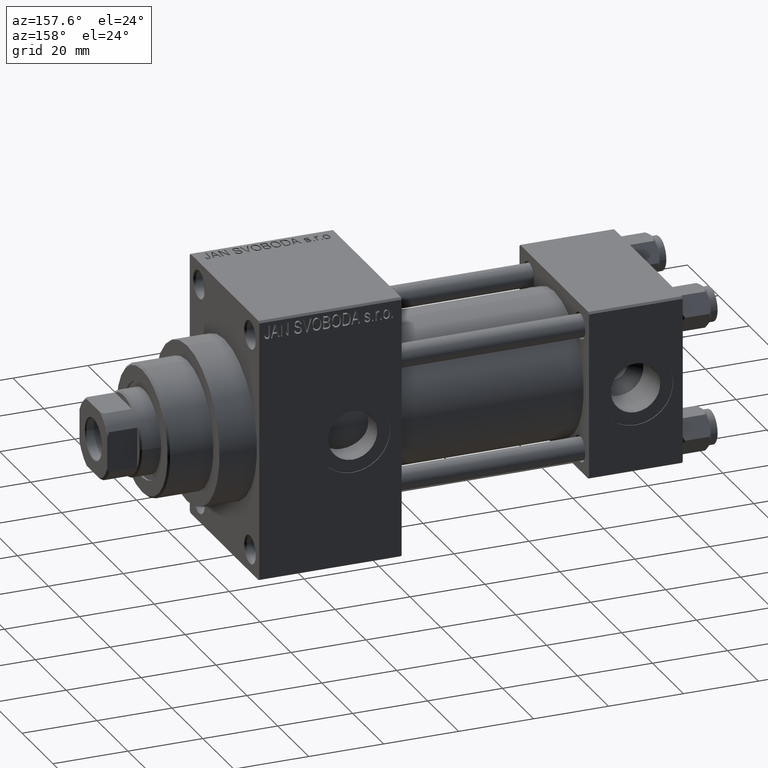
[diagram: clean part render]
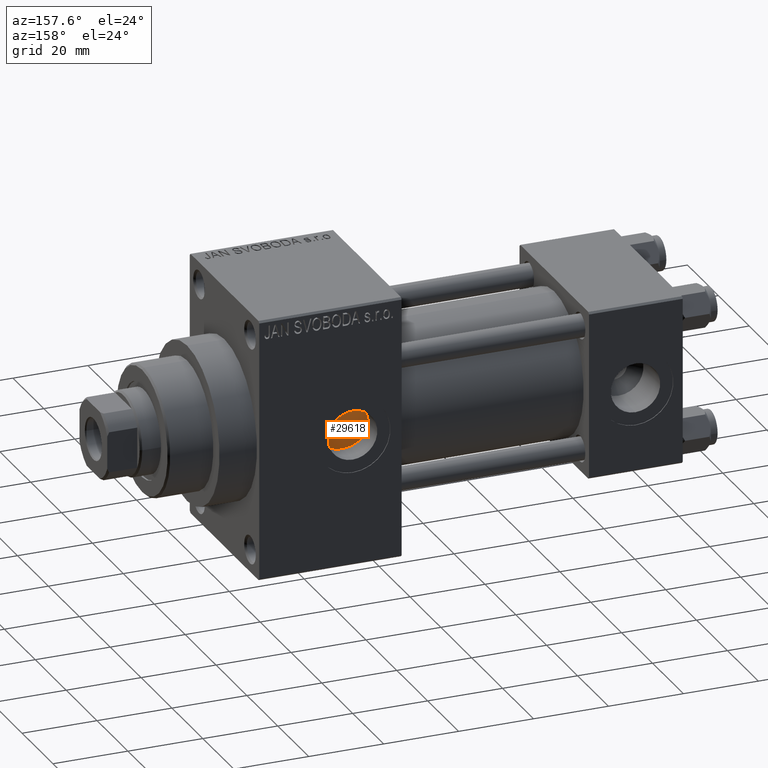
[diagram: same view with one face highlighted and labeled with its STEP entity id]
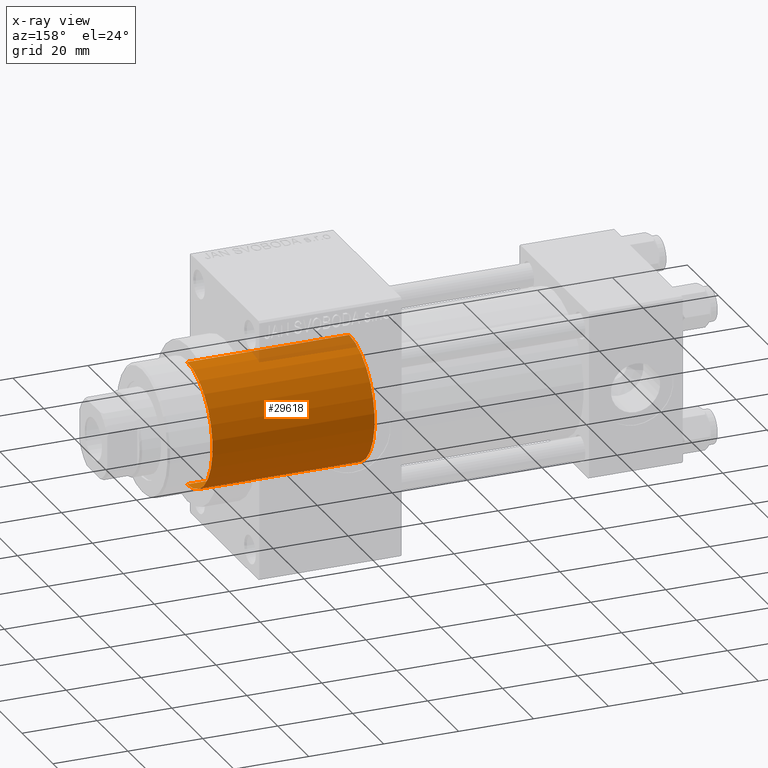
[diagram: x-ray of the same camera — body ghosted, the highlighted face saturated]
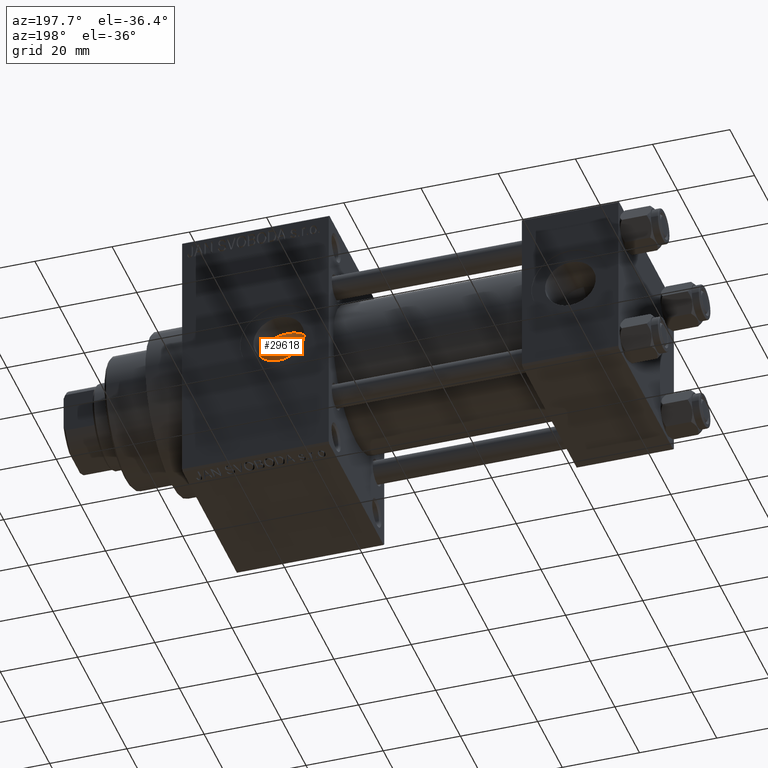
[diagram: same view with one face highlighted and labeled with its STEP entity id]
A machine part, auxiliary view. The second image highlights one B-rep face of the part: STEP entity #29618.
The next image is the same camera in x-ray: the body ghosted, the highlighted face saturated — about 6% of this face is hidden behind the body in this view.
A second angle (auxiliary view) of the same face is appended — the face is thin or edge-on in the first view.
In plain terms, the highlighted cylindrical surface (partial cylindrical patch) has radius 16.5 mm, axis along (-1, 0, 0).
Its self-contained STEP definition (entity closure, byte-faithful):
#3040 = DIRECTION ( 'NONE',  ( -0.000000000000000000, -0.000000000000000000, -1.000000000000000000 ) ) ;
#3260 = EDGE_CURVE ( 'NONE', #36288, #26646, #13683, .T. ) ;
#4273 = CARTESIAN_POINT ( 'NONE',  ( -16.50000000000000000, 0.000000000000000000, 0.000000000000000000 ) ) ;
#4879 = CARTESIAN_POINT ( 'NONE',  ( 16.50000000000000000, 2.020667218593133100E-15, 0.000000000000000000 ) ) ;
#6376 = AXIS2_PLACEMENT_3D ( 'NONE', #27057, #33119, #47418 ) ;
#6504 = DIRECTION ( 'NONE',  ( -1.000000000000000000, 0.000000000000000000, 0.000000000000000000 ) ) ;
#7858 = EDGE_CURVE ( 'NONE', #30222, #29657, #48423, .T. ) ;
#10959 = FACE_OUTER_BOUND ( 'NONE', #19606, .T. ) ;
#11688 = CARTESIAN_POINT ( 'NONE',  ( -16.50000000000000000, 0.000000000000000000, 43.25999999999999801 ) ) ;
#13683 = LINE ( 'NONE', #24555, #21576 ) ;
#17059 = CIRCLE ( 'NONE', #44605, 16.50000000000000000 ) ;
#17701 = ORIENTED_EDGE ( 'NONE', *, *, #20905, .T. ) ;
#19606 = EDGE_LOOP ( 'NONE', ( #21297, #21493, #31633, #17701 ) ) ;
#20850 = DIRECTION ( 'NONE',  ( -0.000000000000000000, -0.000000000000000000, -1.000000000000000000 ) ) ;
#20905 = EDGE_CURVE ( 'NONE', #29657, #26646, #29249, .T. ) ;
#21297 = ORIENTED_EDGE ( 'NONE', *, *, #3260, .F. ) ;
#21493 = ORIENTED_EDGE ( 'NONE', *, *, #42850, .F. ) ;
#21576 = VECTOR ( 'NONE', #20850, 1000.000000000000000 ) ;
#22038 = DIRECTION ( 'NONE',  ( 0.000000000000000000, 0.000000000000000000, 1.000000000000000000 ) ) ;
#22537 = CARTESIAN_POINT ( 'NONE',  ( 0.000000000000000000, 0.000000000000000000, 43.25999999999999801 ) ) ;
#24555 = CARTESIAN_POINT ( 'NONE',  ( 16.50000000000000000, 2.020667218593133100E-15, 43.25999999999999801 ) ) ;
#25659 = VECTOR ( 'NONE', #3040, 1000.000000000000000 ) ;
#26016 = DIRECTION ( 'NONE',  ( -0.000000000000000000, -0.000000000000000000, -1.000000000000000000 ) ) ;
#26646 = VERTEX_POINT ( 'NONE', #4879 ) ;
#27057 = CARTESIAN_POINT ( 'NONE',  ( 0.000000000000000000, 0.000000000000000000, 0.000000000000000000 ) ) ;
#29249 = CIRCLE ( 'NONE', #6376, 16.50000000000000000 ) ;
#29463 = CYLINDRICAL_SURFACE ( 'NONE', #45079, 16.50000000000000000 ) ;
#29618 = ADVANCED_FACE ( 'NONE', ( #10959 ), #29463, .T. ) ;
#29657 = VERTEX_POINT ( 'NONE', #4273 ) ;
#30222 = VERTEX_POINT ( 'NONE', #35903 ) ;
#31633 = ORIENTED_EDGE ( 'NONE', *, *, #7858, .T. ) ;
#33119 = DIRECTION ( 'NONE',  ( 0.000000000000000000, 0.000000000000000000, 1.000000000000000000 ) ) ;
#35903 = CARTESIAN_POINT ( 'NONE',  ( -16.50000000000000000, 0.000000000000000000, 43.25999999999999801 ) ) ;
#36288 = VERTEX_POINT ( 'NONE', #36672 ) ;
#36672 = CARTESIAN_POINT ( 'NONE',  ( 16.50000000000000000, 2.020667218593133100E-15, 43.25999999999999801 ) ) ;
#37564 = DIRECTION ( 'NONE',  ( 1.000000000000000000, 0.000000000000000000, 0.000000000000000000 ) ) ;
#42850 = EDGE_CURVE ( 'NONE', #30222, #36288, #17059, .T. ) ;
#44490 = CARTESIAN_POINT ( 'NONE',  ( 0.000000000000000000, 0.000000000000000000, 43.25999999999999801 ) ) ;
#44605 = AXIS2_PLACEMENT_3D ( 'NONE', #22537, #22038, #37564 ) ;
#45079 = AXIS2_PLACEMENT_3D ( 'NONE', #44490, #26016, #6504 ) ;
#47418 = DIRECTION ( 'NONE',  ( 1.000000000000000000, 0.000000000000000000, 0.000000000000000000 ) ) ;
#48423 = LINE ( 'NONE', #11688, #25659 ) ;